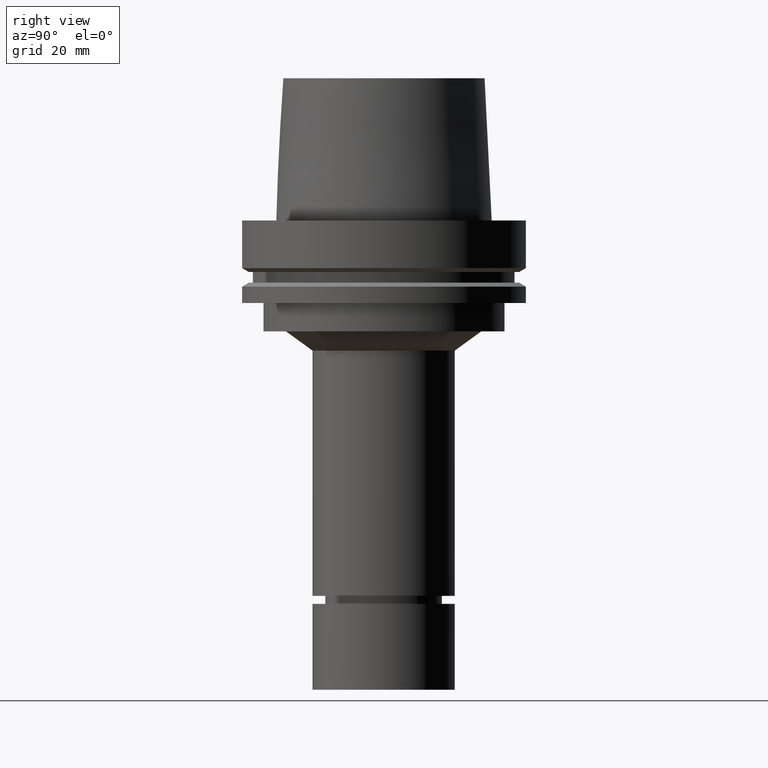
[diagram: clean part render]
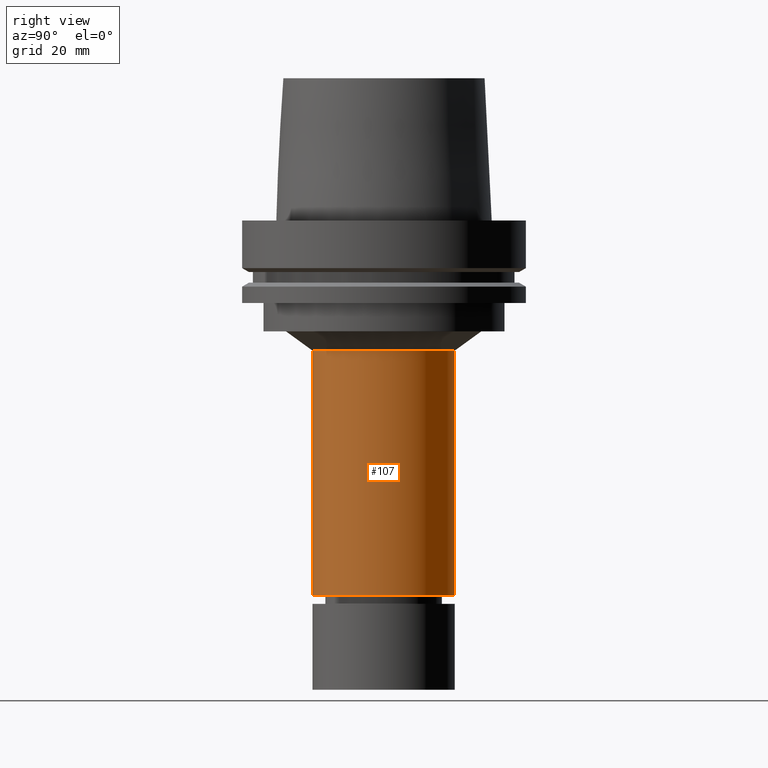
[diagram: same view with one face highlighted and labeled with its STEP entity id]
A machine part, right view. The second image highlights one B-rep face of the part: STEP entity #107.
In plain terms, the highlighted cylindrical surface (bore or boss wall) has radius 25 mm, axis along (0, 0, -1).
Its self-contained STEP definition (entity closure, byte-faithful):
#107=ADVANCED_FACE('Unnamed[1]',(#261,#262),#263,.T.);
#109=EDGE_CURVE('Unnamed[1]',#265,#265,#266,.T.);
#130=EDGE_CURVE('Unnamed[1]',#298,#298,#299,.T.);
#261=FACE_BOUND('',#470,.T.);
#262=FACE_BOUND('',#471,.T.);
#263=CYLINDRICAL_SURFACE('',#472,25.0);
#265=VERTEX_POINT('',#475);
#266=CIRCLE('',#476,25.0);
#298=VERTEX_POINT('',#517);
#299=CIRCLE('',#518,25.0);
#470=EDGE_LOOP('',(#696));
#471=EDGE_LOOP('',(#697));
#472=AXIS2_PLACEMENT_3D('',#698,#699,#700);
#475=CARTESIAN_POINT('',(8.08267852271583E-015,25.0,-132.000157569404));
#476=AXIS2_PLACEMENT_3D('',#701,#702,#703);
#517=CARTESIAN_POINT('',(2.80227603553221E-015,25.0,-45.76464067));
#518=AXIS2_PLACEMENT_3D('',#737,#738,#739);
#696=ORIENTED_EDGE('',*,*,#109,.F.);
#697=ORIENTED_EDGE('',*,*,#130,.T.);
#698=CARTESIAN_POINT('',(5.44247727912402E-015,1.0884954558248E-014,-88.8823991197018));
#699=DIRECTION('',(6.12323399573677E-017,1.22464679914735E-016,-1.0));
#700=DIRECTION('',(-1.23259516440783E-032,1.0,1.22464679914735E-016));
#701=CARTESIAN_POINT('',(8.08267852271583E-015,1.61653570454317E-014,-132.000157569404));
#702=DIRECTION('',(6.12323399573677E-017,1.22464679914735E-016,-1.0));
#703=DIRECTION('',(-1.23259516440783E-032,1.0,1.22464679914735E-016));
#737=CARTESIAN_POINT('',(2.80227603553221E-015,5.60455207106442E-015,-45.76464067));
#738=DIRECTION('',(6.12323399573677E-017,1.22464679914735E-016,-1.0));
#739=DIRECTION('',(-1.23259516440783E-032,1.0,1.22464679914735E-016));